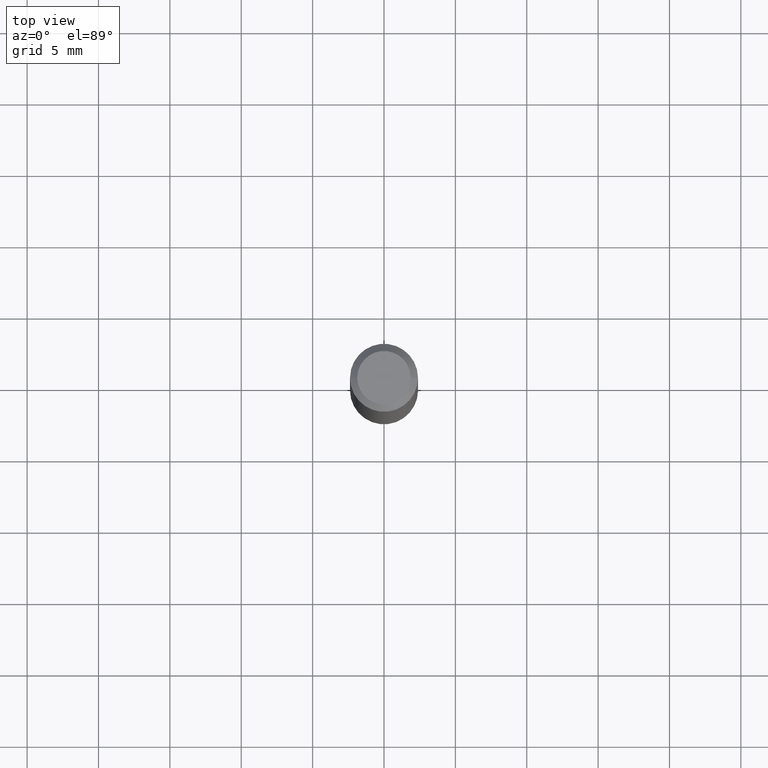
[diagram: clean part render]
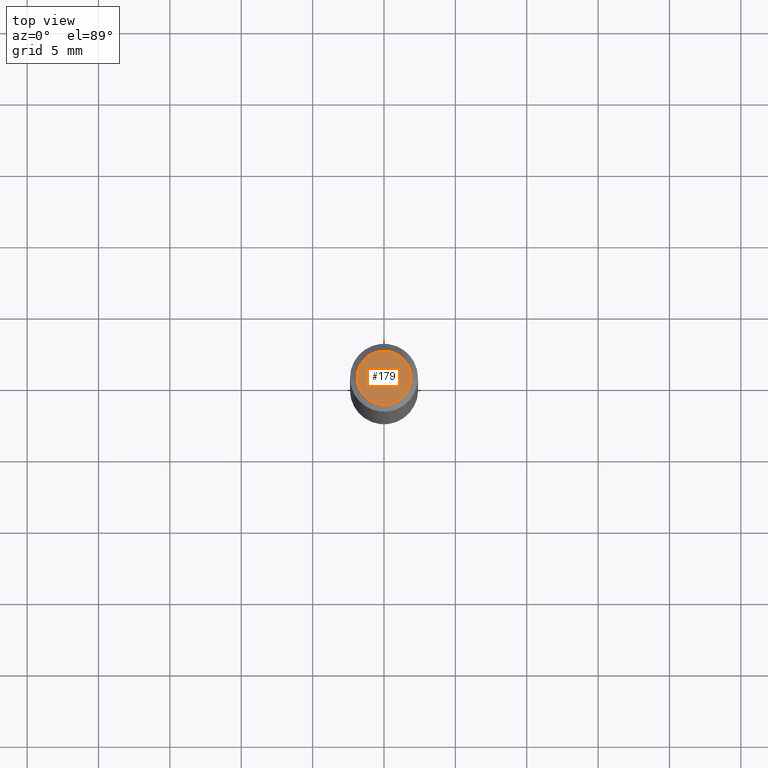
[diagram: same view with one face highlighted and labeled with its STEP entity id]
A machine part, top view. The second image highlights one B-rep face of the part: STEP entity #179.
In plain terms, the highlighted planar face has unit normal (0, -0, -1).
Its self-contained STEP definition (entity closure, byte-faithful):
#3 = CARTESIAN_POINT ( 'NONE',  ( -0.07374999999999989897, 5.499083108677923596E-16, -3.723527850031188365E-30 ) ) ;
#16 = CIRCLE ( 'NONE', #202, 0.07374999999999989897 ) ;
#22 = DIRECTION ( 'NONE',  ( -1.000000000000000000, 6.982962677686265922E-15, -4.876176775795935793E-29 ) ) ;
#24 = DIRECTION ( 'NONE',  ( -2.445468806185136597E-29, 3.491481338843145583E-15, 1.000000000000000000 ) ) ;
#63 = CIRCLE ( 'NONE', #168, 0.07374999999999989897 ) ;
#114 = AXIS2_PLACEMENT_3D ( 'NONE', #320, #117, #22 ) ;
#117 = DIRECTION ( 'NONE',  ( 2.438088387897960049E-29, -3.491481338843145188E-15, -1.000000000000000000 ) ) ;
#125 = VERTEX_POINT ( 'NONE', #3 ) ;
#142 = CARTESIAN_POINT ( 'NONE',  ( 0.000000000000000000, 0.000000000000000000, 0.000000000000000000 ) ) ;
#149 = ORIENTED_EDGE ( 'NONE', *, *, #197, .T. ) ;
#166 = FACE_OUTER_BOUND ( 'NONE', #267, .T. ) ;
#168 = AXIS2_PLACEMENT_3D ( 'NONE', #289, #24, #253 ) ;
#179 = ADVANCED_FACE ( 'NONE', ( #166 ), #285, .F. ) ;
#197 = EDGE_CURVE ( 'NONE', #239, #125, #16, .T. ) ;
#202 = AXIS2_PLACEMENT_3D ( 'NONE', #142, #300, #266 ) ;
#228 = CARTESIAN_POINT ( 'NONE',  ( 0.07374999999999989897, -6.094815207017964156E-16, 3.931526600461600150E-30 ) ) ;
#239 = VERTEX_POINT ( 'NONE', #228 ) ;
#253 = DIRECTION ( 'NONE',  ( 1.000000000000000000, -6.982962677686267499E-15, 4.876176775795935232E-29 ) ) ;
#266 = DIRECTION ( 'NONE',  ( 1.000000000000000000, -6.982962677686267499E-15, 4.876176775795935232E-29 ) ) ;
#267 = EDGE_LOOP ( 'NONE', ( #278, #149 ) ) ;
#278 = ORIENTED_EDGE ( 'NONE', *, *, #317, .T. ) ;
#285 = PLANE ( 'NONE',  #114 ) ;
#289 = CARTESIAN_POINT ( 'NONE',  ( 0.000000000000000000, 0.000000000000000000, 0.000000000000000000 ) ) ;
#300 = DIRECTION ( 'NONE',  ( -2.445468806185136597E-29, 3.491481338843145583E-15, 1.000000000000000000 ) ) ;
#317 = EDGE_CURVE ( 'NONE', #125, #239, #63, .T. ) ;
#320 = CARTESIAN_POINT ( 'NONE',  ( 5.149934974793614008E-16, 0.07374999999999989897, -2.574967487396815879E-16 ) ) ;